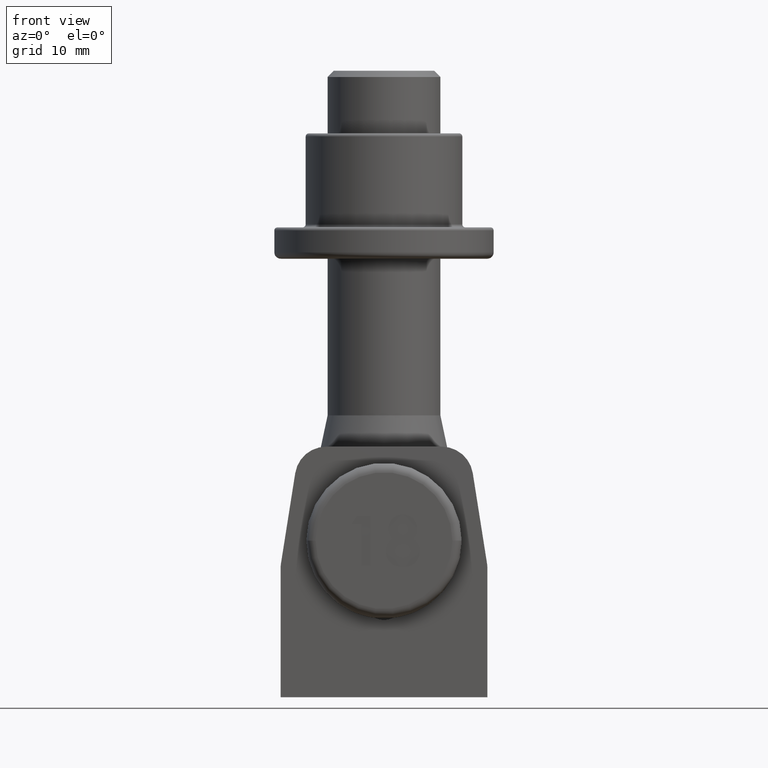
[diagram: clean part render]
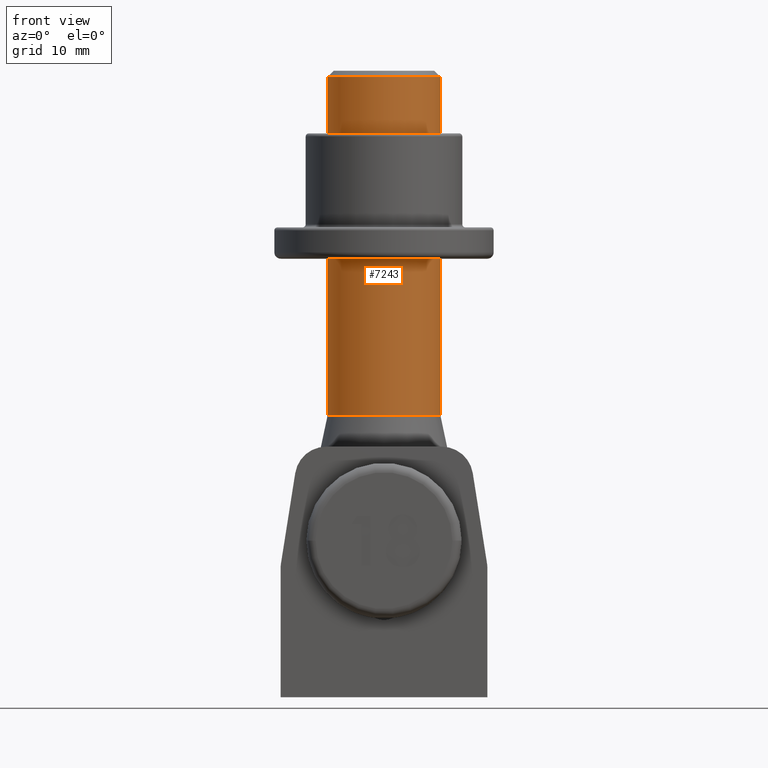
[diagram: same view with one face highlighted and labeled with its STEP entity id]
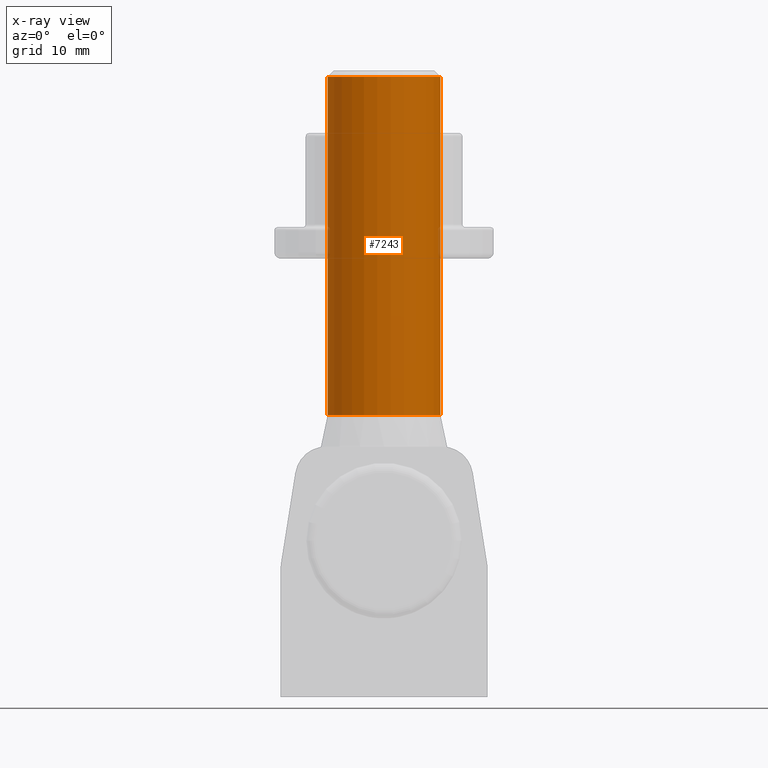
[diagram: x-ray of the same camera — body ghosted, the highlighted face saturated]
A machine part, front view. The second image highlights one B-rep face of the part: STEP entity #7243.
The next image is the same camera in x-ray: the body ghosted, the highlighted face saturated — about 0% of this face is hidden behind the body in this view.
In plain terms, the highlighted cylindrical surface (partial cylindrical patch) has radius 9 mm, axis along (0, 0, 1).
Its self-contained STEP definition (entity closure, byte-faithful):
#180 = CARTESIAN_POINT ( 'NONE',  ( 9.000000000000000000, 1.293748228990657500E-015, 19.99999999999999600 ) ) ;
#287 = DIRECTION ( 'NONE',  ( 0.0000000000000000000, 0.0000000000000000000, 1.000000000000000000 ) ) ;
#478 = CARTESIAN_POINT ( 'NONE',  ( 0.0000000000000000000, 0.0000000000000000000, 19.99999999999999600 ) ) ;
#529 = DIRECTION ( 'NONE',  ( 1.000000000000000000, 0.0000000000000000000, 0.0000000000000000000 ) ) ;
#574 = VERTEX_POINT ( 'NONE', #1331 ) ;
#916 = CARTESIAN_POINT ( 'NONE',  ( -9.000000000000000000, 1.102182119232617700E-015, 74.00000000000000000 ) ) ;
#925 = DIRECTION ( 'NONE',  ( 0.0000000000000000000, 0.0000000000000000000, 1.000000000000000000 ) ) ;
#1300 = AXIS2_PLACEMENT_3D ( 'NONE', #478, #1805, #529 ) ;
#1331 = CARTESIAN_POINT ( 'NONE',  ( -9.000000000000000000, 0.0000000000000000000, 19.99999999999999600 ) ) ;
#1805 = DIRECTION ( 'NONE',  ( 0.0000000000000000000, 0.0000000000000000000, 1.000000000000000000 ) ) ;
#1950 = EDGE_CURVE ( 'NONE', #11635, #5234, #14892, .T. ) ;
#2716 = DIRECTION ( 'NONE',  ( 0.0000000000000000000, 0.0000000000000000000, 1.000000000000000000 ) ) ;
#5123 = CARTESIAN_POINT ( 'NONE',  ( -9.000000000000000000, 1.102182119232617700E-015, 19.99999999999999600 ) ) ;
#5234 = VERTEX_POINT ( 'NONE', #916 ) ;
#5651 = AXIS2_PLACEMENT_3D ( 'NONE', #12535, #287, #8932 ) ;
#5740 = CYLINDRICAL_SURFACE ( 'NONE', #5651, 9.000000000000000000 ) ;
#5955 = VECTOR ( 'NONE', #2716, 1000.000000000000000 ) ;
#6443 = EDGE_CURVE ( 'NONE', #574, #5234, #7296, .T. ) ;
#6754 = EDGE_CURVE ( 'NONE', #9762, #11635, #7854, .T. ) ;
#7113 = VECTOR ( 'NONE', #925, 1000.000000000000000 ) ;
#7130 = CARTESIAN_POINT ( 'NONE',  ( 9.000000000000000000, 0.0000000000000000000, 19.99999999999999600 ) ) ;
#7243 = ADVANCED_FACE ( 'NONE', ( #10351 ), #5740, .T. ) ;
#7296 = LINE ( 'NONE', #5123, #5955 ) ;
#7315 = ORIENTED_EDGE ( 'NONE', *, *, #15863, .T. ) ;
#7854 = LINE ( 'NONE', #7130, #7113 ) ;
#8487 = ORIENTED_EDGE ( 'NONE', *, *, #6754, .T. ) ;
#8932 = DIRECTION ( 'NONE',  ( 1.000000000000000000, 0.0000000000000000000, 0.0000000000000000000 ) ) ;
#9011 = AXIS2_PLACEMENT_3D ( 'NONE', #15980, #13394, #13595 ) ;
#9110 = CARTESIAN_POINT ( 'NONE',  ( 9.000000000000000000, 0.0000000000000000000, 74.00000000000000000 ) ) ;
#9762 = VERTEX_POINT ( 'NONE', #180 ) ;
#10283 = EDGE_LOOP ( 'NONE', ( #10455, #7315, #8487, #10425 ) ) ;
#10351 = FACE_OUTER_BOUND ( 'NONE', #10283, .T. ) ;
#10425 = ORIENTED_EDGE ( 'NONE', *, *, #1950, .T. ) ;
#10455 = ORIENTED_EDGE ( 'NONE', *, *, #6443, .F. ) ;
#11471 = CIRCLE ( 'NONE', #1300, 9.000000000000000000 ) ;
#11635 = VERTEX_POINT ( 'NONE', #9110 ) ;
#12535 = CARTESIAN_POINT ( 'NONE',  ( 0.0000000000000000000, 0.0000000000000000000, 19.99999999999999600 ) ) ;
#13394 = DIRECTION ( 'NONE',  ( 0.0000000000000000000, 0.0000000000000000000, -1.000000000000000000 ) ) ;
#13595 = DIRECTION ( 'NONE',  ( 1.000000000000000000, 0.0000000000000000000, 0.0000000000000000000 ) ) ;
#14892 = CIRCLE ( 'NONE', #9011, 9.000000000000000000 ) ;
#15863 = EDGE_CURVE ( 'NONE', #574, #9762, #11471, .T. ) ;
#15980 = CARTESIAN_POINT ( 'NONE',  ( 0.0000000000000000000, 0.0000000000000000000, 74.00000000000000000 ) ) ;